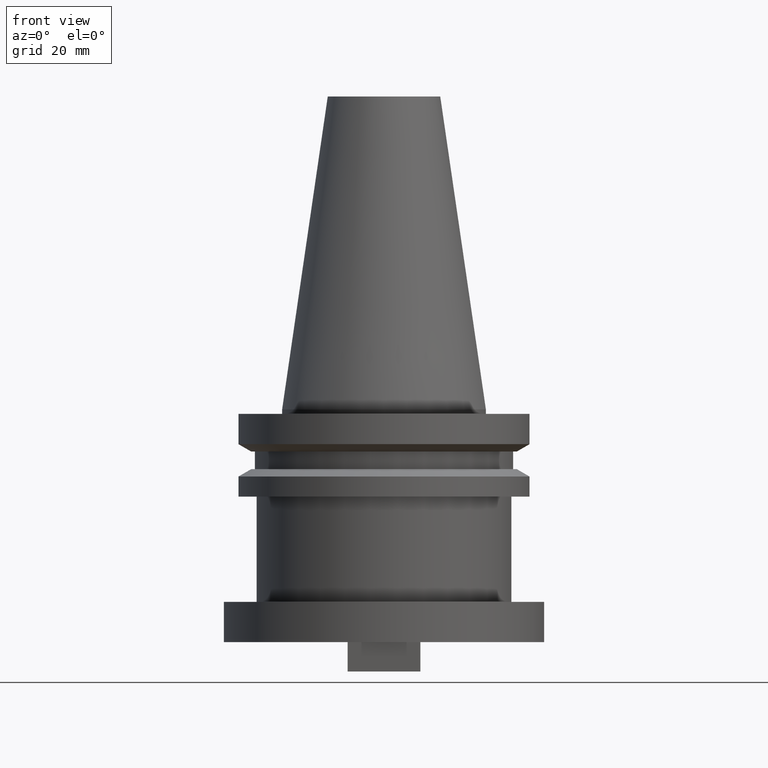
[diagram: clean part render]
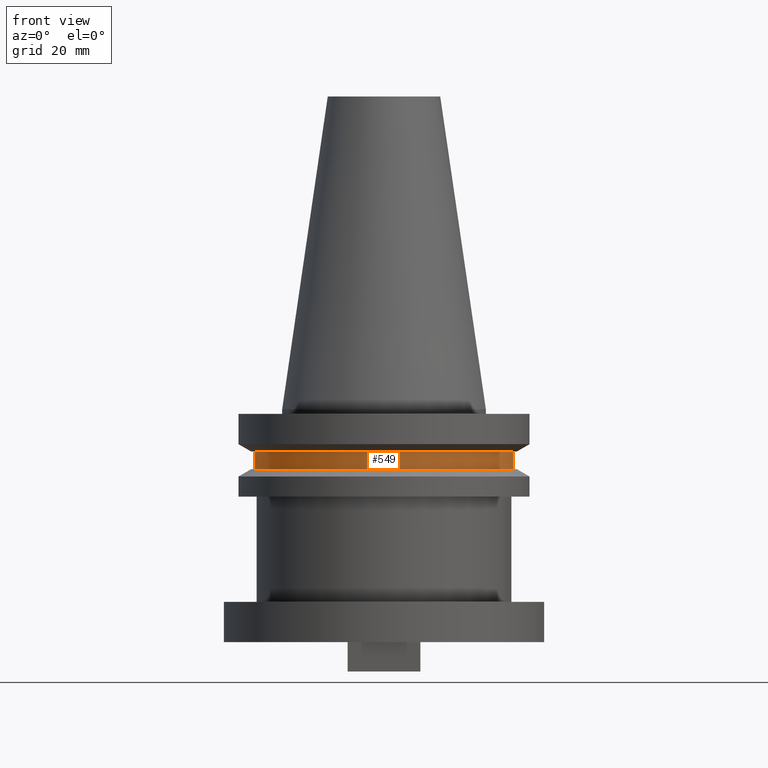
[diagram: same view with one face highlighted and labeled with its STEP entity id]
A machine part, front view. The second image highlights one B-rep face of the part: STEP entity #549.
In plain terms, the highlighted cylindrical surface (partial cylindrical patch) has radius 28.18 mm, axis along (-0, -0, 1).
Its self-contained STEP definition (entity closure, byte-faithful):
#38 = CARTESIAN_POINT ( 'NONE',  ( 0.000000000000000000, 0.000000000000000000, 68.25000000000000000 ) ) ;
#62 = ORIENTED_EDGE ( 'NONE', *, *, #63, .T. ) ;
#63 = EDGE_CURVE ( 'NONE', #263, #1012, #414, .T. ) ;
#131 = CARTESIAN_POINT ( 'NONE',  ( 28.17999999999999972, 0.000000000000000000, 68.25000000000000000 ) ) ;
#164 = EDGE_CURVE ( 'NONE', #1012, #1022, #607, .T. ) ;
#223 = CARTESIAN_POINT ( 'NONE',  ( 0.000000000000000000, 0.000000000000000000, -9.204999999999991189 ) ) ;
#243 = VECTOR ( 'NONE', #445, 1000.000000000000000 ) ;
#263 = VERTEX_POINT ( 'NONE', #1038 ) ;
#311 = AXIS2_PLACEMENT_3D ( 'NONE', #662, #433, #920 ) ;
#357 = AXIS2_PLACEMENT_3D ( 'NONE', #223, #551, #1083 ) ;
#366 = DIRECTION ( 'NONE',  ( 1.000000000000000000, 0.000000000000000000, 0.000000000000000000 ) ) ;
#388 = LINE ( 'NONE', #554, #1015 ) ;
#414 = CIRCLE ( 'NONE', #311, 28.17999999999999972 ) ;
#433 = DIRECTION ( 'NONE',  ( -0.000000000000000000, -0.000000000000000000, 1.000000000000000000 ) ) ;
#445 = DIRECTION ( 'NONE',  ( -0.000000000000000000, -0.000000000000000000, 1.000000000000000000 ) ) ;
#448 = EDGE_CURVE ( 'NONE', #263, #660, #388, .T. ) ;
#475 = CARTESIAN_POINT ( 'NONE',  ( -28.17999999999999972, 3.451054679997241634E-15, -9.204999999999991189 ) ) ;
#519 = CYLINDRICAL_SURFACE ( 'NONE', #527, 28.17999999999999972 ) ;
#527 = AXIS2_PLACEMENT_3D ( 'NONE', #38, #530, #366 ) ;
#530 = DIRECTION ( 'NONE',  ( -0.000000000000000000, -0.000000000000000000, 1.000000000000000000 ) ) ;
#549 = ADVANCED_FACE ( 'NONE', ( #957 ), #519, .T. ) ;
#551 = DIRECTION ( 'NONE',  ( -0.000000000000000000, -0.000000000000000000, 1.000000000000000000 ) ) ;
#554 = CARTESIAN_POINT ( 'NONE',  ( -28.17999999999999972, 3.451054679997241634E-15, 68.25000000000000000 ) ) ;
#568 = ORIENTED_EDGE ( 'NONE', *, *, #675, .F. ) ;
#600 = EDGE_LOOP ( 'NONE', ( #682, #62, #788, #568 ) ) ;
#607 = LINE ( 'NONE', #131, #243 ) ;
#647 = CARTESIAN_POINT ( 'NONE',  ( 28.17999999999999972, 0.000000000000000000, -9.204999999999991189 ) ) ;
#660 = VERTEX_POINT ( 'NONE', #475 ) ;
#662 = CARTESIAN_POINT ( 'NONE',  ( 0.000000000000000000, 0.000000000000000000, -13.05499999999999794 ) ) ;
#675 = EDGE_CURVE ( 'NONE', #660, #1022, #909, .T. ) ;
#682 = ORIENTED_EDGE ( 'NONE', *, *, #448, .F. ) ;
#714 = DIRECTION ( 'NONE',  ( -0.000000000000000000, -0.000000000000000000, 1.000000000000000000 ) ) ;
#788 = ORIENTED_EDGE ( 'NONE', *, *, #164, .T. ) ;
#831 = CARTESIAN_POINT ( 'NONE',  ( 28.17999999999999972, 0.000000000000000000, -13.05499999999999794 ) ) ;
#909 = CIRCLE ( 'NONE', #357, 28.17999999999999972 ) ;
#920 = DIRECTION ( 'NONE',  ( 1.000000000000000000, 0.000000000000000000, 0.000000000000000000 ) ) ;
#957 = FACE_OUTER_BOUND ( 'NONE', #600, .T. ) ;
#1012 = VERTEX_POINT ( 'NONE', #831 ) ;
#1015 = VECTOR ( 'NONE', #714, 1000.000000000000000 ) ;
#1022 = VERTEX_POINT ( 'NONE', #647 ) ;
#1038 = CARTESIAN_POINT ( 'NONE',  ( -28.17999999999999972, 3.451054679997241634E-15, -13.05499999999999794 ) ) ;
#1083 = DIRECTION ( 'NONE',  ( 1.000000000000000000, 0.000000000000000000, 0.000000000000000000 ) ) ;